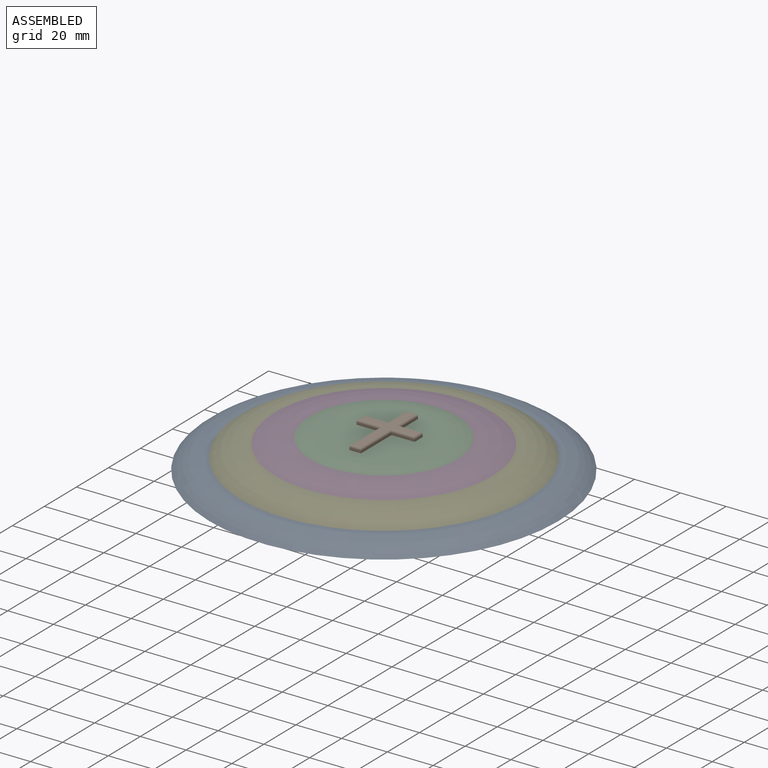
[diagram: assembled view]
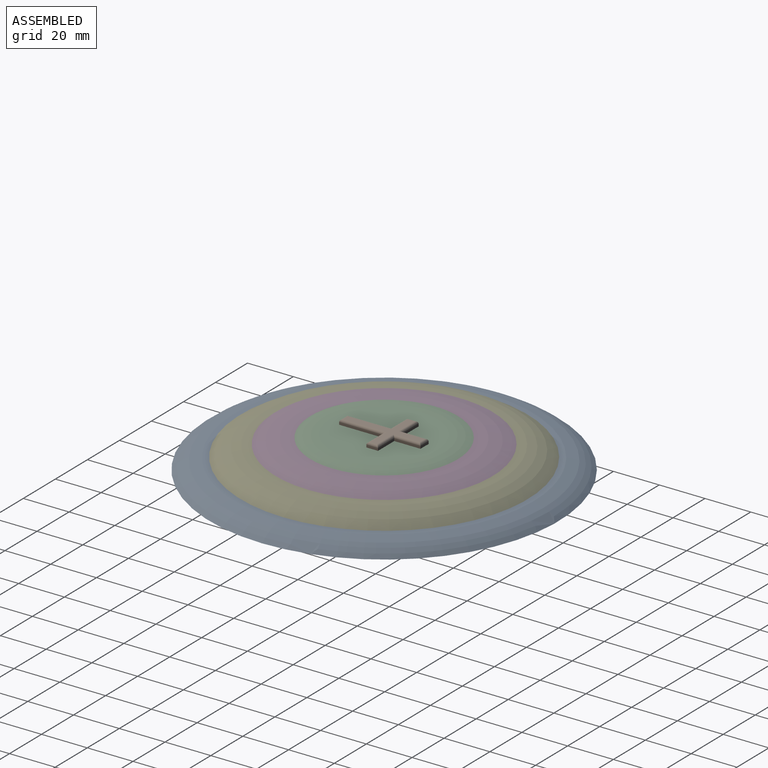
[diagram: assembled view, second angle]
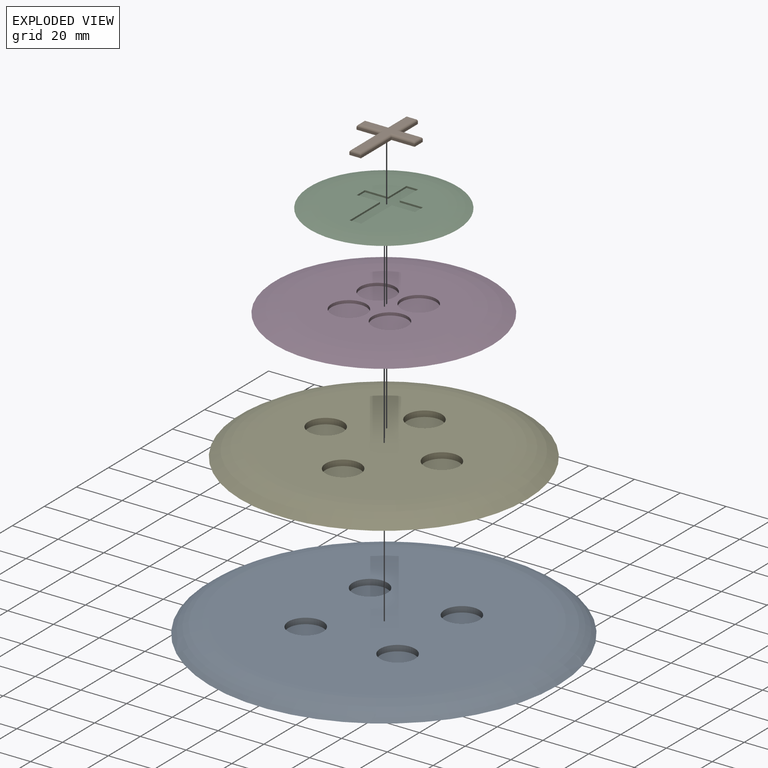
[diagram: exploded view]
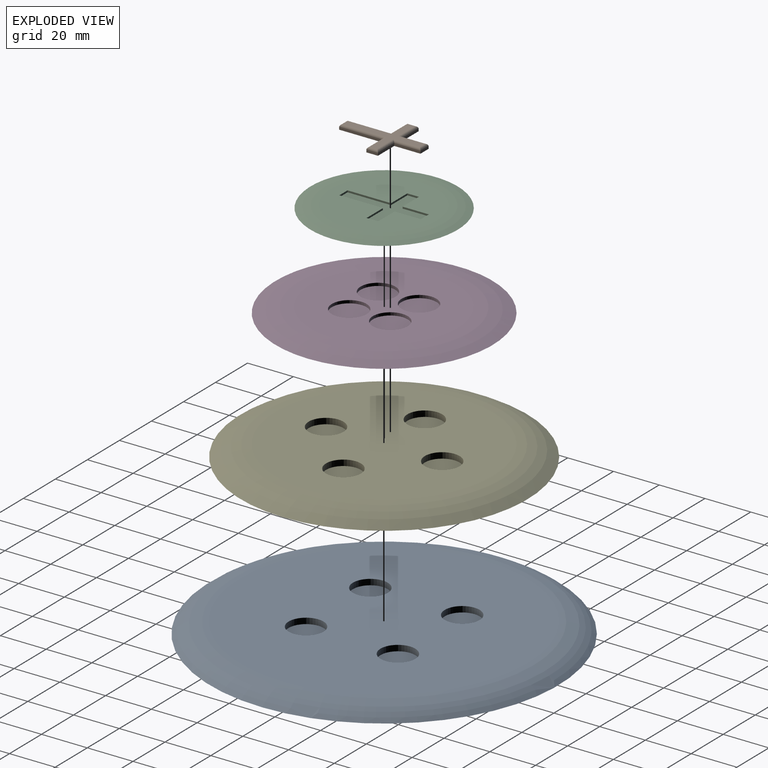
[diagram: exploded view, second angle]
ASSEMBLY  parts=5 mates=4
PART A: 11 faces, bbox 167.1x167.1x5.9 mm
  f0: plane 152.4x152.4mm, normal (0,0,-1), area 18241.5mm2, adj f2
  f1: plane 125.52x125.52mm, normal (0,0,1), area 11644.3mm2, adj f2,f3,f5,f7,f9
  f2: torus R=62.76mm, axis (0,0,-1), area 6439.7mm2, adj f0,f1
  f3: cylinder r=7.62mm len=15.24mm, axis (0,0,1), area 121.6mm2, adj f1,f4
  f4: plane 15.24x15.24mm, normal (0,0,1), area 182.4mm2, adj f3
  f5: cylinder r=7.62mm len=15.24mm, axis (0,0,1), area 121.6mm2, adj f1,f6
  f6: plane 15.24x15.24mm, normal (0,0,1), area 182.4mm2, adj f5
  f7: cylinder r=7.62mm len=15.24mm, axis (0,0,1), area 121.6mm2, adj f1,f8
  f8: plane 15.24x15.24mm, normal (0,0,1), area 182.4mm2, adj f7
  f9: cylinder r=7.62mm len=15.24mm, axis (0,0,1), area 121.6mm2, adj f1,f10
  f10: plane 15.24x15.24mm, normal (0,0,1), area 182.4mm2, adj f9
PART B: 26 faces, bbox 25.4x35.6x2 mm
  f0: plane 11.47x1.02mm, normal (-1,0,0), area 11.7mm2, adj f1,f11,f13,f23
  f1: plane 10.16x1.02mm, normal (0,1,0), area 10.3mm2, adj f0,f2,f13,f21
  f2: plane 5.08x1.02mm, normal (-1,0,0), area 5.2mm2, adj f1,f3,f13,f19
  f3: plane 10.16x1.02mm, normal (0,-1,0), area 10.3mm2, adj f2,f4,f13,f17
  f4: plane 19.01x1.02mm, normal (-1,0,0), area 19.3mm2, adj f3,f5,f13,f15
  f5: plane 5.09x1.02mm, normal (0,-1,0), area 5.2mm2, adj f4,f6,f13,f14
  f6: plane 19.01x1.02mm, normal (1,0,0), area 19.3mm2, adj f5,f7,f13,f16
  f7: plane 10.16x1.02mm, normal (0,-1,0), area 10.3mm2, adj f6,f8,f13,f18
  f8: plane 5.08x1.02mm, normal (1,0,0), area 5.2mm2, adj f7,f9,f13,f20
  f9: plane 10.16x1.02mm, normal (0,1,0), area 10.3mm2, adj f8,f10,f13,f22
  f10: plane 11.47x1.02mm, normal (1,0,0), area 11.7mm2, adj f9,f11,f13,f24
  f11: plane 5.09x1.02mm, normal (0,1,0), area 5.2mm2, adj f0,f10,f13,f25
  f12: plane 33.53x23.38mm, normal (0,0,1), area 164.5mm2, adj f14,f15,f16,f17,f18,f19,f20,f21
  f13: plane 35.56x25.41mm, normal (0,0,-1), area 284.2mm2, adj f0,f1,f2,f3,f4,f5,f6,f7
  f14: cylinder r=1.02mm len=5.09mm, axis (-1,0,0), area 6.9mm2, adj f5,f12,f15,f16
  f15: cylinder r=1.02mm len=20.02mm, axis (0,1,0), area 30.3mm2, adj f4,f12,f14,f17
  f16: cylinder r=1.02mm len=20.02mm, axis (0,-1,0), area 30.3mm2, adj f6,f12,f14,f18
  f17: cylinder r=1.02mm len=11.18mm, axis (-1,0,0), area 16.2mm2, adj f3,f12,f15,f19
  f18: cylinder r=1.02mm len=11.18mm, axis (-1,0,0), area 16.2mm2, adj f7,f12,f16,f20
  f19: cylinder r=1.02mm len=5.08mm, axis (0,1,0), area 6.9mm2, adj f2,f12,f17,f21
  f20: cylinder r=1.02mm len=5.08mm, axis (0,-1,0), area 6.9mm2, adj f8,f12,f18,f22
  f21: cylinder r=1.02mm len=11.18mm, axis (1,0,0), area 16.2mm2, adj f1,f12,f19,f23
  f22: cylinder r=1.02mm len=11.18mm, axis (1,0,0), area 16.2mm2, adj f9,f12,f20,f24
  f23: cylinder r=1.02mm len=12.49mm, axis (0,1,0), area 18.3mm2, adj f0,f12,f21,f25
  f24: cylinder r=1.02mm len=12.49mm, axis (0,-1,0), area 18.3mm2, adj f10,f12,f22,f25
  f25: cylinder r=1.02mm len=5.09mm, axis (1,0,0), area 6.9mm2, adj f11,f12,f23,f24
PART C: 24 faces, bbox 64.3x64.3x2.5 mm
  f0: plane 46.48x46.48mm, normal (0,0,1), area 1412.7mm2, adj f10,f11,f12,f13,f14,f15,f16,f17
  f1: plane 64.26x64.26mm, normal (0,0,-1), area 2561.6mm2, adj f2,f4,f6,f8,f10
  f2: cylinder r=7.37mm len=14.73mm, axis (0,0,1), area 58.8mm2, adj f1,f3
  f3: plane 14.73x14.73mm, normal (0,0,-1), area 170.5mm2, adj f2
  f4: cylinder r=7.37mm len=14.73mm, axis (0,0,1), area 58.8mm2, adj f1,f5
  f5: plane 14.73x14.73mm, normal (0,0,-1), area 170.5mm2, adj f4
  f6: cylinder r=7.37mm len=14.73mm, axis (0,0,1), area 58.8mm2, adj f1,f7
  f7: plane 14.73x14.73mm, normal (0,0,-1), area 170.5mm2, adj f6
  f8: cylinder r=7.37mm len=14.73mm, axis (0,0,1), area 58.8mm2, adj f1,f9
  f9: plane 14.73x14.73mm, normal (0,0,-1), area 170.5mm2, adj f8
  f10: torus R=23.24mm, axis (0,0,-1), area 1569.1mm2, adj f0,f1
  f11: plane 11.47x0.76mm, normal (1,0,0), area 8.7mm2, adj f0,f12,f22,f23
  f12: plane 10.16x0.76mm, normal (0,-1,0), area 7.7mm2, adj f0,f11,f13,f23
  f13: plane 5.08x0.76mm, normal (1,0,0), area 3.9mm2, adj f0,f12,f14,f23
  f14: plane 10.16x0.76mm, normal (0,1,0), area 7.7mm2, adj f0,f13,f15,f23
  f15: plane 19.01x0.76mm, normal (1,0,0), area 14.5mm2, adj f0,f14,f16,f23
  f16: plane 5.09x0.76mm, normal (0,1,0), area 3.9mm2, adj f0,f15,f17,f23
  f17: plane 19.01x0.76mm, normal (-1,0,0), area 14.5mm2, adj f0,f16,f18,f23
  f18: plane 10.16x0.76mm, normal (0,1,0), area 7.7mm2, adj f0,f17,f19,f23
  f19: plane 5.08x0.76mm, normal (-1,0,0), area 3.9mm2, adj f0,f18,f20,f23
  f20: plane 10.16x0.76mm, normal (0,-1,0), area 7.7mm2, adj f0,f19,f21,f23
  f21: plane 11.47x0.76mm, normal (-1,0,0), area 8.7mm2, adj f0,f20,f22,f23
  f22: plane 5.09x0.76mm, normal (0,-1,0), area 3.9mm2, adj f0,f11,f21,f23
  f23: plane 35.56x25.41mm, normal (0,0,1), area 284.2mm2, adj f11,f12,f13,f14,f15,f16,f17,f18
PART D: 19 faces, bbox 94.9x94.9x5.1 mm
  f0: plane 64.33x64.33mm, normal (0,0,1), area 2520.7mm2, adj f10,f11,f13,f15,f17
  f1: plane 94.88x94.88mm, normal (0,0,-1), area 6388.2mm2, adj f2,f4,f6,f8,f10
  f2: cylinder r=7.37mm len=14.73mm, axis (0,0,1), area 117.6mm2, adj f1,f3
  f3: plane 14.73x14.73mm, normal (0,0,-1), area 170.5mm2, adj f2
  f4: cylinder r=7.37mm len=14.73mm, axis (0,0,1), area 117.6mm2, adj f1,f5
  f5: plane 14.73x14.73mm, normal (0,0,-1), area 170.5mm2, adj f4
  f6: cylinder r=7.37mm len=14.73mm, axis (0,0,1), area 117.6mm2, adj f1,f7
  f7: plane 14.73x14.73mm, normal (0,0,-1), area 170.5mm2, adj f6
  f8: cylinder r=7.37mm len=14.73mm, axis (0,0,1), area 117.6mm2, adj f1,f9
  f9: plane 14.73x14.73mm, normal (0,0,-1), area 170.5mm2, adj f8
  f10: torus R=32.17mm, axis (0,0,-1), area 3896.6mm2, adj f0,f1
  f11: cylinder r=7.62mm len=15.24mm, axis (0,0,1), area 60.8mm2, adj f0,f12
  f12: plane 15.24x15.24mm, normal (0,0,1), area 182.4mm2, adj f11
  f13: cylinder r=7.62mm len=15.24mm, axis (0,0,1), area 60.8mm2, adj f0,f14
  f14: plane 15.24x15.24mm, normal (0,0,1), area 182.4mm2, adj f13
  f15: cylinder r=7.62mm len=15.24mm, axis (0,0,1), area 60.8mm2, adj f0,f16
  f16: plane 15.24x15.24mm, normal (0,0,1), area 182.4mm2, adj f15
  f17: cylinder r=7.62mm len=15.24mm, axis (0,0,1), area 60.8mm2, adj f0,f18
  f18: plane 15.24x15.24mm, normal (0,0,1), area 182.4mm2, adj f17
PART E: 19 faces, bbox 141.8x141.8x7.6 mm
  f0: plane 94.92x94.92mm, normal (0,0,1), area 6346.6mm2, adj f2,f11,f13,f15,f17
  f1: plane 125.4x125.4mm, normal (0,0,-1), area 11668.6mm2, adj f2,f3,f5,f7,f9
  f2: torus R=47.46mm, axis (0,0,-1), area 5684.8mm2, adj f0,f1
  f3: cylinder r=7.37mm len=14.73mm, axis (0,0,1), area 117.6mm2, adj f1,f4
  f4: plane 14.73x14.73mm, normal (0,0,-1), area 170.5mm2, adj f3
  f5: cylinder r=7.37mm len=14.73mm, axis (0,0,1), area 117.6mm2, adj f1,f6
  f6: plane 14.73x14.73mm, normal (0,0,-1), area 170.5mm2, adj f5
  f7: cylinder r=7.37mm len=14.73mm, axis (0,0,1), area 117.6mm2, adj f1,f8
  f8: plane 14.73x14.73mm, normal (0,0,-1), area 170.5mm2, adj f7
  f9: cylinder r=7.37mm len=14.73mm, axis (0,0,1), area 117.6mm2, adj f1,f10
  f10: plane 14.73x14.73mm, normal (0,0,-1), area 170.5mm2, adj f9
  f11: cylinder r=7.62mm len=15.24mm, axis (0,0,1), area 121.6mm2, adj f0,f12
  f12: plane 15.24x15.24mm, normal (0,0,1), area 182.4mm2, adj f11
  f13: cylinder r=7.62mm len=15.24mm, axis (0,0,1), area 121.6mm2, adj f0,f14
  f14: plane 15.24x15.24mm, normal (0,0,1), area 182.4mm2, adj f13
  f15: cylinder r=7.62mm len=15.24mm, axis (0,0,1), area 121.6mm2, adj f0,f16
  f16: plane 15.24x15.24mm, normal (0,0,1), area 182.4mm2, adj f15
  f17: cylinder r=7.62mm len=15.24mm, axis (0,0,1), area 121.6mm2, adj f0,f18
  f18: plane 15.24x15.24mm, normal (0,0,1), area 182.4mm2, adj f17
PLACE A t=(5.5,-4.37,-21.75)mm
PLACE B t=(5.5,-4.49,-12.86)mm
PLACE C t=(5.5,-4.37,-14.13)mm
PLACE D t=(5.5,-4.37,-16.67)mm
PLACE E t=(5.5,-4.37,-21.75)mm
MATE fastened B.f13 <-> C.f0  axis (0,0,-1) through (5.5,-3.12,-12.86)mm
MATE fastened A.f5 <-> E.f5  axis (0,0,1) through (25.58,15.71,-24.29)mm
MATE fastened E.f13 <-> D.f8  axis (0,0,1) through (5.5,-29.77,-19.21)mm
MATE fastened C.f2 <-> D.f15  axis (0,0,-1) through (-3.48,-13.35,-15.4)mm
